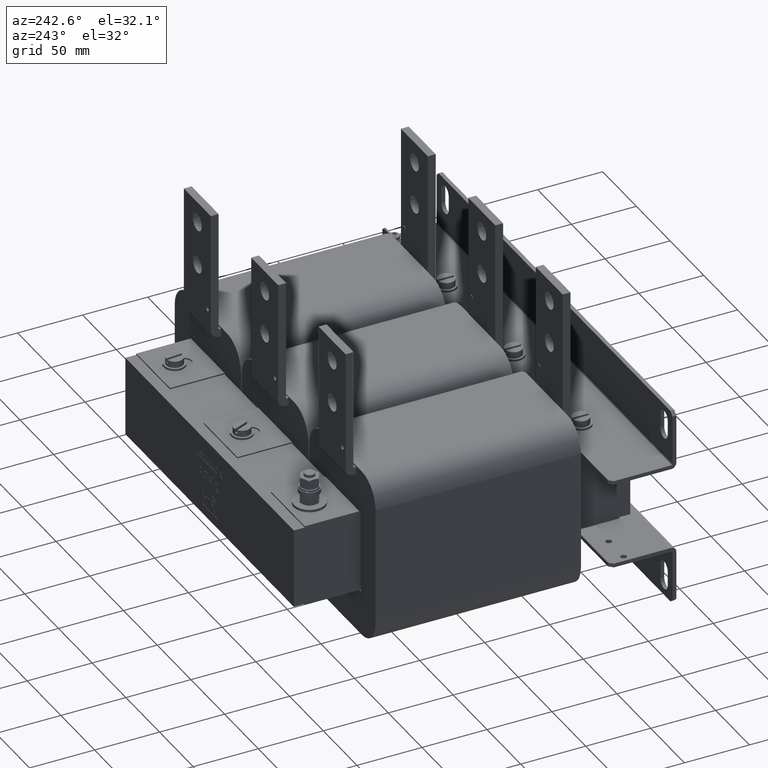
[diagram: clean part render]
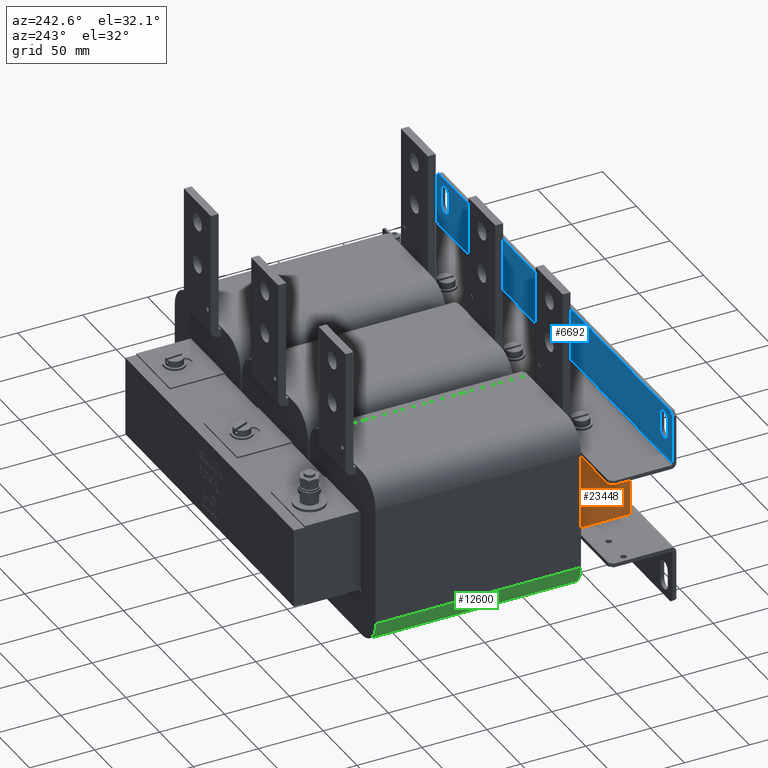
[diagram: same view with three faces highlighted in distinct colors, each labeled with its STEP entity id]
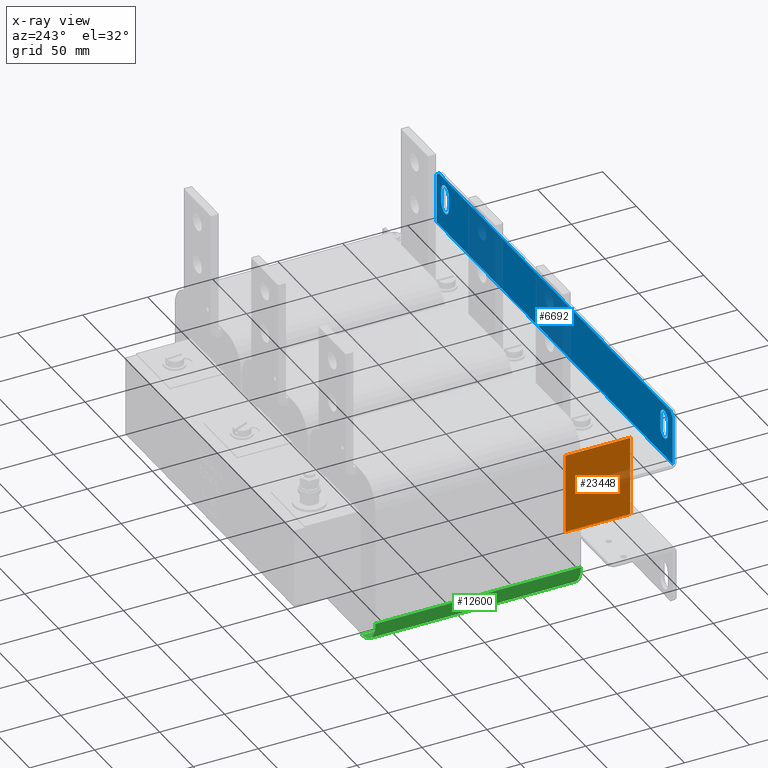
[diagram: x-ray of the same camera — body ghosted, the three highlighted faces saturated]
A machine part, auxiliary view with three faces highlighted in distinct colors.
The next image is the same camera in x-ray (body ghosted, the three faces saturated) — at least one of them is partly hidden behind the body in this view.
Their STEP definitions:

[orange] entity #23448 — the highlighted planar face has unit normal (1, 0, 0).
#263 = FACE_OUTER_BOUND ( 'NONE', #20659, .T. ) ;
#266 = LINE ( 'NONE', #25866, #7216 ) ;
#563 = VECTOR ( 'NONE', #18174, 1000.000000000000000 ) ;
#633 = VERTEX_POINT ( 'NONE', #6701 ) ;
#799 = VERTEX_POINT ( 'NONE', #26226 ) ;
#2843 = EDGE_CURVE ( 'NONE', #18417, #633, #16759, .T. ) ;
#3400 = CARTESIAN_POINT ( 'NONE',  ( -125.0000000000000600, -25.00000000000000400, 30.75000000000000000 ) ) ;
#5820 = EDGE_CURVE ( 'NONE', #6104, #633, #14478, .T. ) ;
#5952 = CARTESIAN_POINT ( 'NONE',  ( -125.0000000000000600, 24.99999999999999600, -30.75000000000000000 ) ) ;
#6104 = VERTEX_POINT ( 'NONE', #26481 ) ;
#6701 = CARTESIAN_POINT ( 'NONE',  ( -125.0000000000000600, -25.00000000000000400, -30.75000000000000000 ) ) ;
#6764 = CARTESIAN_POINT ( 'NONE',  ( -125.0000000000000600, -25.00000000000000400, 30.75000000000000000 ) ) ;
#7179 = ORIENTED_EDGE ( 'NONE', *, *, #25733, .T. ) ;
#7216 = VECTOR ( 'NONE', #25955, 1000.000000000000000 ) ;
#7653 = CARTESIAN_POINT ( 'NONE',  ( -125.0000000000000600, -25.00000000000000400, -30.75000000000000000 ) ) ;
#8880 = DIRECTION ( 'NONE',  ( -0.0000000000000000000, -0.0000000000000000000, -1.000000000000000000 ) ) ;
#9137 = DIRECTION ( 'NONE',  ( 1.000000000000000000, 0.0000000000000000000, 0.0000000000000000000 ) ) ;
#9618 = AXIS2_PLACEMENT_3D ( 'NONE', #19656, #9137, #23852 ) ;
#10667 = EDGE_CURVE ( 'NONE', #799, #6104, #23990, .T. ) ;
#10793 = PLANE ( 'NONE',  #9618 ) ;
#11345 = ORIENTED_EDGE ( 'NONE', *, *, #10667, .F. ) ;
#11493 = ORIENTED_EDGE ( 'NONE', *, *, #2843, .T. ) ;
#14478 = LINE ( 'NONE', #6764, #24005 ) ;
#15528 = ORIENTED_EDGE ( 'NONE', *, *, #5820, .F. ) ;
#15853 = VECTOR ( 'NONE', #22396, 1000.000000000000000 ) ;
#16759 = LINE ( 'NONE', #7653, #15853 ) ;
#18174 = DIRECTION ( 'NONE',  ( -0.0000000000000000000, -1.000000000000000000, -0.0000000000000000000 ) ) ;
#18417 = VERTEX_POINT ( 'NONE', #5952 ) ;
#19656 = CARTESIAN_POINT ( 'NONE',  ( -125.0000000000000600, -25.00000000000000400, 30.75000000000000000 ) ) ;
#20659 = EDGE_LOOP ( 'NONE', ( #11493, #15528, #11345, #7179 ) ) ;
#22396 = DIRECTION ( 'NONE',  ( -0.0000000000000000000, -1.000000000000000000, -0.0000000000000000000 ) ) ;
#23448 = ADVANCED_FACE ( 'NONE', ( #263 ), #10793, .F. ) ;
#23852 = DIRECTION ( 'NONE',  ( 0.0000000000000000000, 0.0000000000000000000, -1.000000000000000000 ) ) ;
#23990 = LINE ( 'NONE', #3400, #563 ) ;
#24005 = VECTOR ( 'NONE', #8880, 1000.000000000000000 ) ;
#25733 = EDGE_CURVE ( 'NONE', #799, #18417, #266, .T. ) ;
#25866 = CARTESIAN_POINT ( 'NONE',  ( -125.0000000000000600, 24.99999999999999600, 30.75000000000000000 ) ) ;
#25955 = DIRECTION ( 'NONE',  ( -0.0000000000000000000, -0.0000000000000000000, -1.000000000000000000 ) ) ;
#26226 = CARTESIAN_POINT ( 'NONE',  ( -125.0000000000000600, 24.99999999999999600, 30.75000000000000000 ) ) ;
#26481 = CARTESIAN_POINT ( 'NONE',  ( -125.0000000000000600, -25.00000000000000400, 30.75000000000000000 ) ) ;

[blue] entity #6692 — the highlighted planar face has unit normal (0, -1, 0).
#73 = CARTESIAN_POINT ( 'NONE',  ( -162.5000000000000000, 0.0000000000000000000, 11.99999999999983500 ) ) ;
#134 = CIRCLE ( 'NONE', #1103, 5.500000000000005300 ) ;
#158 = VERTEX_POINT ( 'NONE', #14121 ) ;
#273 = EDGE_CURVE ( 'NONE', #8775, #3835, #631, .T. ) ;
#435 = DIRECTION ( 'NONE',  ( 0.0000000000000000000, -0.0000000000000000000, -1.000000000000000000 ) ) ;
#473 = LINE ( 'NONE', #24505, #11113 ) ;
#631 = CIRCLE ( 'NONE', #21967, 5.500000000000006200 ) ;
#696 = VERTEX_POINT ( 'NONE', #2723 ) ;
#715 = ORIENTED_EDGE ( 'NONE', *, *, #8902, .F. ) ;
#931 = FACE_BOUND ( 'NONE', #6364, .T. ) ;
#1103 = AXIS2_PLACEMENT_3D ( 'NONE', #15600, #2953, #17737 ) ;
#1251 = DIRECTION ( 'NONE',  ( 0.0000000000000000000, 0.0000000000000000000, 1.000000000000000000 ) ) ;
#1328 = DIRECTION ( 'NONE',  ( 0.0000000000000000000, 0.0000000000000000000, 1.000000000000000000 ) ) ;
#1827 = EDGE_CURVE ( 'NONE', #158, #16940, #12220, .T. ) ;
#1894 = CARTESIAN_POINT ( 'NONE',  ( -162.5000000000000000, 0.0000000000000000000, 0.9999999999998361300 ) ) ;
#2216 = DIRECTION ( 'NONE',  ( 0.0000000000000000000, 0.0000000000000000000, 1.000000000000000000 ) ) ;
#2723 = CARTESIAN_POINT ( 'NONE',  ( 174.9999999999999700, 0.0000000000000000000, 19.49999999999999600 ) ) ;
#2953 = DIRECTION ( 'NONE',  ( 0.0000000000000000000, 1.000000000000000000, 0.0000000000000000000 ) ) ;
#3235 = CIRCLE ( 'NONE', #14219, 5.499999999999976900 ) ;
#3331 = EDGE_CURVE ( 'NONE', #7857, #13772, #3235, .T. ) ;
#3412 = CIRCLE ( 'NONE', #16597, 5.499999999999978700 ) ;
#3696 = VECTOR ( 'NONE', #19658, 1000.000000000000000 ) ;
#3835 = VERTEX_POINT ( 'NONE', #13147 ) ;
#4031 = DIRECTION ( 'NONE',  ( 0.0000000000000000000, 0.0000000000000000000, 1.000000000000000000 ) ) ;
#4110 = VECTOR ( 'NONE', #21961, 1000.000000000000100 ) ;
#4443 = VERTEX_POINT ( 'NONE', #5880 ) ;
#4906 = CARTESIAN_POINT ( 'NONE',  ( 168.0000000000000000, 0.0000000000000000000, 0.9999999999998343500 ) ) ;
#5164 = ORIENTED_EDGE ( 'NONE', *, *, #20543, .T. ) ;
#5216 = EDGE_CURVE ( 'NONE', #13772, #11117, #10953, .T. ) ;
#5518 = CARTESIAN_POINT ( 'NONE',  ( 157.0000000000000000, 0.0000000000000000000, 11.99999999999983800 ) ) ;
#5825 = CARTESIAN_POINT ( 'NONE',  ( -175.0000000000000300, -1.387778780781445700E-014, -18.50000000000000400 ) ) ;
#5880 = CARTESIAN_POINT ( 'NONE',  ( 171.9999999999998900, 0.0000000000000000000, 22.50000000000002800 ) ) ;
#5936 = VERTEX_POINT ( 'NONE', #11081 ) ;
#6314 = ORIENTED_EDGE ( 'NONE', *, *, #1827, .T. ) ;
#6364 = EDGE_LOOP ( 'NONE', ( #18110, #9566, #12190, #20933 ) ) ;
#6692 = ADVANCED_FACE ( 'NONE', ( #11016, #931, #16538 ), #10943, .F. ) ;
#7198 = CARTESIAN_POINT ( 'NONE',  ( 171.9999999999999700, 0.0000000000000000000, 22.50000000000000000 ) ) ;
#7384 = EDGE_CURVE ( 'NONE', #4443, #696, #22658, .T. ) ;
#7649 = DIRECTION ( 'NONE',  ( 1.000000000000000000, 0.0000000000000000000, 0.0000000000000000000 ) ) ;
#7857 = VERTEX_POINT ( 'NONE', #16220 ) ;
#8159 = EDGE_LOOP ( 'NONE', ( #17091, #6314, #5164, #11070, #25395, #715 ) ) ;
#8410 = ORIENTED_EDGE ( 'NONE', *, *, #12267, .F. ) ;
#8775 = VERTEX_POINT ( 'NONE', #5518 ) ;
#8884 = DIRECTION ( 'NONE',  ( 0.0000000000000000000, 0.0000000000000000000, -1.000000000000000000 ) ) ;
#8902 = EDGE_CURVE ( 'NONE', #18916, #21944, #14874, .T. ) ;
#9112 = EDGE_LOOP ( 'NONE', ( #25283, #8410, #26554, #20574 ) ) ;
#9566 = ORIENTED_EDGE ( 'NONE', *, *, #3331, .F. ) ;
#9606 = CARTESIAN_POINT ( 'NONE',  ( 174.9999999999999700, -1.387778780781445700E-014, -18.50000000000000400 ) ) ;
#9845 = DIRECTION ( 'NONE',  ( 0.7071067811865474600, -0.0000000000000000000, 0.7071067811865474600 ) ) ;
#10025 = LINE ( 'NONE', #15942, #19927 ) ;
#10265 = CARTESIAN_POINT ( 'NONE',  ( -167.9999999999999700, 0.0000000000000000000, 11.99999999999983300 ) ) ;
#10517 = VECTOR ( 'NONE', #1251, 1000.000000000000000 ) ;
#10943 = PLANE ( 'NONE',  #25564 ) ;
#10953 = LINE ( 'NONE', #13893, #10517 ) ;
#11016 = FACE_BOUND ( 'NONE', #9112, .T. ) ;
#11070 = ORIENTED_EDGE ( 'NONE', *, *, #7384, .T. ) ;
#11081 = CARTESIAN_POINT ( 'NONE',  ( 157.0000000000000000, 0.0000000000000000000, 0.9999999999998325800 ) ) ;
#11113 = VECTOR ( 'NONE', #7649, 1000.000000000000000 ) ;
#11117 = VERTEX_POINT ( 'NONE', #10265 ) ;
#11616 = EDGE_CURVE ( 'NONE', #696, #21944, #17885, .T. ) ;
#11842 = VECTOR ( 'NONE', #9845, 1000.000000000000100 ) ;
#11884 = DIRECTION ( 'NONE',  ( 0.0000000000000000000, 1.000000000000000000, 0.0000000000000000000 ) ) ;
#12190 = ORIENTED_EDGE ( 'NONE', *, *, #20039, .F. ) ;
#12220 = LINE ( 'NONE', #22447, #11842 ) ;
#12267 = EDGE_CURVE ( 'NONE', #17225, #5936, #134, .T. ) ;
#12342 = EDGE_CURVE ( 'NONE', #18916, #158, #12864, .T. ) ;
#12343 = CARTESIAN_POINT ( 'NONE',  ( -171.9999999999999700, 0.0000000000000000000, 22.50000000000000000 ) ) ;
#12476 = CARTESIAN_POINT ( 'NONE',  ( -175.0000000000000300, -1.387778780781445700E-014, -18.50000000000000400 ) ) ;
#12864 = LINE ( 'NONE', #26270, #26083 ) ;
#13063 = DIRECTION ( 'NONE',  ( 0.0000000000000000000, -1.000000000000000000, 0.0000000000000000000 ) ) ;
#13147 = CARTESIAN_POINT ( 'NONE',  ( 168.0000000000000000, 0.0000000000000000000, 11.99999999999983700 ) ) ;
#13772 = VERTEX_POINT ( 'NONE', #24226 ) ;
#13893 = CARTESIAN_POINT ( 'NONE',  ( -167.9999999999999700, 0.0000000000000000000, 0.9999999999998361300 ) ) ;
#14121 = CARTESIAN_POINT ( 'NONE',  ( -175.0000000000000300, 0.0000000000000000000, 19.49999999999994000 ) ) ;
#14219 = AXIS2_PLACEMENT_3D ( 'NONE', #1894, #16690, #4031 ) ;
#14697 = DIRECTION ( 'NONE',  ( -0.0000000000000000000, -0.0000000000000000000, -1.000000000000000000 ) ) ;
#14822 = VECTOR ( 'NONE', #27235, 1000.000000000000000 ) ;
#14843 = DIRECTION ( 'NONE',  ( 0.0000000000000000000, 1.000000000000000000, 0.0000000000000000000 ) ) ;
#14874 = LINE ( 'NONE', #12476, #14822 ) ;
#15077 = EDGE_CURVE ( 'NONE', #11117, #26563, #3412, .T. ) ;
#15097 = LINE ( 'NONE', #4906, #3696 ) ;
#15600 = CARTESIAN_POINT ( 'NONE',  ( 162.5000000000000000, 0.0000000000000000000, 0.9999999999998361300 ) ) ;
#15782 = DIRECTION ( 'NONE',  ( -0.0000000000000000000, -0.0000000000000000000, 1.000000000000000000 ) ) ;
#15942 = CARTESIAN_POINT ( 'NONE',  ( 157.0000000000000000, 0.0000000000000000000, 0.9999999999998325800 ) ) ;
#16220 = CARTESIAN_POINT ( 'NONE',  ( -157.0000000000000300, 0.0000000000000000000, 0.9999999999998361300 ) ) ;
#16538 = FACE_OUTER_BOUND ( 'NONE', #8159, .T. ) ;
#16597 = AXIS2_PLACEMENT_3D ( 'NONE', #73, #14843, #2216 ) ;
#16690 = DIRECTION ( 'NONE',  ( 0.0000000000000000000, 1.000000000000000000, 0.0000000000000000000 ) ) ;
#16940 = VERTEX_POINT ( 'NONE', #12343 ) ;
#17091 = ORIENTED_EDGE ( 'NONE', *, *, #12342, .T. ) ;
#17225 = VERTEX_POINT ( 'NONE', #17794 ) ;
#17737 = DIRECTION ( 'NONE',  ( 0.0000000000000000000, 0.0000000000000000000, 1.000000000000000000 ) ) ;
#17794 = CARTESIAN_POINT ( 'NONE',  ( 168.0000000000000000, 0.0000000000000000000, 0.9999999999998343500 ) ) ;
#17885 = LINE ( 'NONE', #23688, #21765 ) ;
#18110 = ORIENTED_EDGE ( 'NONE', *, *, #5216, .F. ) ;
#18916 = VERTEX_POINT ( 'NONE', #5825 ) ;
#19658 = DIRECTION ( 'NONE',  ( -0.0000000000000000000, -0.0000000000000000000, -1.000000000000000000 ) ) ;
#19732 = EDGE_CURVE ( 'NONE', #5936, #8775, #10025, .T. ) ;
#19927 = VECTOR ( 'NONE', #1328, 1000.000000000000000 ) ;
#20039 = EDGE_CURVE ( 'NONE', #26563, #7857, #20276, .T. ) ;
#20276 = LINE ( 'NONE', #25202, #26298 ) ;
#20543 = EDGE_CURVE ( 'NONE', #16940, #4443, #473, .T. ) ;
#20574 = ORIENTED_EDGE ( 'NONE', *, *, #273, .F. ) ;
#20933 = ORIENTED_EDGE ( 'NONE', *, *, #15077, .F. ) ;
#21765 = VECTOR ( 'NONE', #8884, 1000.000000000000000 ) ;
#21944 = VERTEX_POINT ( 'NONE', #9606 ) ;
#21961 = DIRECTION ( 'NONE',  ( 0.7071067811865474600, -0.0000000000000000000, -0.7071067811865474600 ) ) ;
#21967 = AXIS2_PLACEMENT_3D ( 'NONE', #24483, #11884, #26663 ) ;
#22447 = CARTESIAN_POINT ( 'NONE',  ( -175.0000000000000300, 0.0000000000000000000, 19.49999999999994000 ) ) ;
#22658 = LINE ( 'NONE', #7198, #4110 ) ;
#23544 = CARTESIAN_POINT ( 'NONE',  ( 0.0000000000000000000, 0.0000000000000000000, 0.0000000000000000000 ) ) ;
#23688 = CARTESIAN_POINT ( 'NONE',  ( 174.9999999999999700, 0.0000000000000000000, 22.50000000000000000 ) ) ;
#24226 = CARTESIAN_POINT ( 'NONE',  ( -167.9999999999999700, -0.0000000000000000000, 0.9999999999998361300 ) ) ;
#24483 = CARTESIAN_POINT ( 'NONE',  ( 162.5000000000000000, 0.0000000000000000000, 11.99999999999983500 ) ) ;
#24505 = CARTESIAN_POINT ( 'NONE',  ( -175.0000000000000300, 0.0000000000000000000, 22.50000000000000000 ) ) ;
#24900 = EDGE_CURVE ( 'NONE', #3835, #17225, #15097, .T. ) ;
#25202 = CARTESIAN_POINT ( 'NONE',  ( -157.0000000000000300, 0.0000000000000000000, 0.9999999999998361300 ) ) ;
#25283 = ORIENTED_EDGE ( 'NONE', *, *, #19732, .F. ) ;
#25395 = ORIENTED_EDGE ( 'NONE', *, *, #11616, .T. ) ;
#25564 = AXIS2_PLACEMENT_3D ( 'NONE', #23544, #13063, #435 ) ;
#26083 = VECTOR ( 'NONE', #15782, 1000.000000000000000 ) ;
#26270 = CARTESIAN_POINT ( 'NONE',  ( -175.0000000000000300, 0.0000000000000000000, 22.50000000000000000 ) ) ;
#26298 = VECTOR ( 'NONE', #14697, 1000.000000000000000 ) ;
#26554 = ORIENTED_EDGE ( 'NONE', *, *, #24900, .F. ) ;
#26563 = VERTEX_POINT ( 'NONE', #26726 ) ;
#26663 = DIRECTION ( 'NONE',  ( 0.0000000000000000000, 0.0000000000000000000, 1.000000000000000000 ) ) ;
#26726 = CARTESIAN_POINT ( 'NONE',  ( -157.0000000000000300, 0.0000000000000000000, 11.99999999999983500 ) ) ;
#27235 = DIRECTION ( 'NONE',  ( 1.000000000000000000, -0.0000000000000000000, -0.0000000000000000000 ) ) ;

[green] entity #12600 — the highlighted cylindrical surface (edge-blend (fillet) strip) has radius 20 mm, axis along (0, -1, 0).
#1488 = CARTESIAN_POINT ( 'NONE',  ( -29.00000000000000400, 0.0000000000000000000, -45.75000000000001400 ) ) ;
#2387 = EDGE_CURVE ( 'NONE', #11637, #18272, #15247, .T. ) ;
#3166 = ORIENTED_EDGE ( 'NONE', *, *, #16398, .F. ) ;
#3636 = DIRECTION ( 'NONE',  ( 0.0000000000000000000, 0.0000000000000000000, -1.000000000000000000 ) ) ;
#3848 = CARTESIAN_POINT ( 'NONE',  ( -49.00000000000000000, 158.0000000000000000, -45.75000000000001400 ) ) ;
#4410 = EDGE_CURVE ( 'NONE', #8795, #11845, #15897, .T. ) ;
#4638 = VECTOR ( 'NONE', #20697, 1000.000000000000000 ) ;
#5044 = CARTESIAN_POINT ( 'NONE',  ( -49.00000000000000000, 0.0000000000000000000, -45.75000000000001400 ) ) ;
#5092 = ORIENTED_EDGE ( 'NONE', *, *, #4410, .F. ) ;
#6000 = CARTESIAN_POINT ( 'NONE',  ( -29.00000000000000400, 158.0000000000000000, -45.75000000000001400 ) ) ;
#6468 = CIRCLE ( 'NONE', #21982, 19.99999999999998900 ) ;
#7145 = DIRECTION ( 'NONE',  ( 0.0000000000000000000, 0.0000000000000000000, -1.000000000000000000 ) ) ;
#7725 = CARTESIAN_POINT ( 'NONE',  ( -29.00000000000000400, 0.0000000000000000000, -65.75000000000000000 ) ) ;
#8121 = DIRECTION ( 'NONE',  ( 0.0000000000000000000, 0.0000000000000000000, -1.000000000000000000 ) ) ;
#8795 = VERTEX_POINT ( 'NONE', #7725 ) ;
#10014 = CARTESIAN_POINT ( 'NONE',  ( -29.00000000000000400, 158.0000000000000000, -65.75000000000000000 ) ) ;
#10044 = VECTOR ( 'NONE', #24751, 1000.000000000000000 ) ;
#10598 = AXIS2_PLACEMENT_3D ( 'NONE', #21909, #19804, #7145 ) ;
#10648 = CYLINDRICAL_SURFACE ( 'NONE', #10598, 19.99999999999998900 ) ;
#11637 = VERTEX_POINT ( 'NONE', #13284 ) ;
#11713 = CARTESIAN_POINT ( 'NONE',  ( -29.00000000000000400, 158.0000000000000000, -65.75000000000000000 ) ) ;
#11845 = VERTEX_POINT ( 'NONE', #11713 ) ;
#12600 = ADVANCED_FACE ( 'NONE', ( #21253 ), #10648, .T. ) ;
#13284 = CARTESIAN_POINT ( 'NONE',  ( -49.00000000000000000, 158.0000000000000000, -45.75000000000001400 ) ) ;
#15247 = LINE ( 'NONE', #3848, #4638 ) ;
#15897 = LINE ( 'NONE', #10014, #10044 ) ;
#16280 = DIRECTION ( 'NONE',  ( 0.0000000000000000000, -1.000000000000000000, 0.0000000000000000000 ) ) ;
#16398 = EDGE_CURVE ( 'NONE', #11845, #11637, #18523, .T. ) ;
#18272 = VERTEX_POINT ( 'NONE', #5044 ) ;
#18523 = CIRCLE ( 'NONE', #26374, 19.99999999999998900 ) ;
#19804 = DIRECTION ( 'NONE',  ( -0.0000000000000000000, -1.000000000000000000, 0.0000000000000000000 ) ) ;
#20697 = DIRECTION ( 'NONE',  ( -0.0000000000000000000, -1.000000000000000000, 0.0000000000000000000 ) ) ;
#20734 = DIRECTION ( 'NONE',  ( -0.0000000000000000000, 1.000000000000000000, -0.0000000000000000000 ) ) ;
#21253 = FACE_OUTER_BOUND ( 'NONE', #25662, .T. ) ;
#21883 = ORIENTED_EDGE ( 'NONE', *, *, #23152, .F. ) ;
#21909 = CARTESIAN_POINT ( 'NONE',  ( -29.00000000000000400, 158.0000000000000000, -45.75000000000001400 ) ) ;
#21982 = AXIS2_PLACEMENT_3D ( 'NONE', #1488, #16280, #3636 ) ;
#23152 = EDGE_CURVE ( 'NONE', #18272, #8795, #6468, .T. ) ;
#24751 = DIRECTION ( 'NONE',  ( -0.0000000000000000000, 1.000000000000000000, -0.0000000000000000000 ) ) ;
#25255 = ORIENTED_EDGE ( 'NONE', *, *, #2387, .F. ) ;
#25662 = EDGE_LOOP ( 'NONE', ( #3166, #5092, #21883, #25255 ) ) ;
#26374 = AXIS2_PLACEMENT_3D ( 'NONE', #6000, #20734, #8121 ) ;